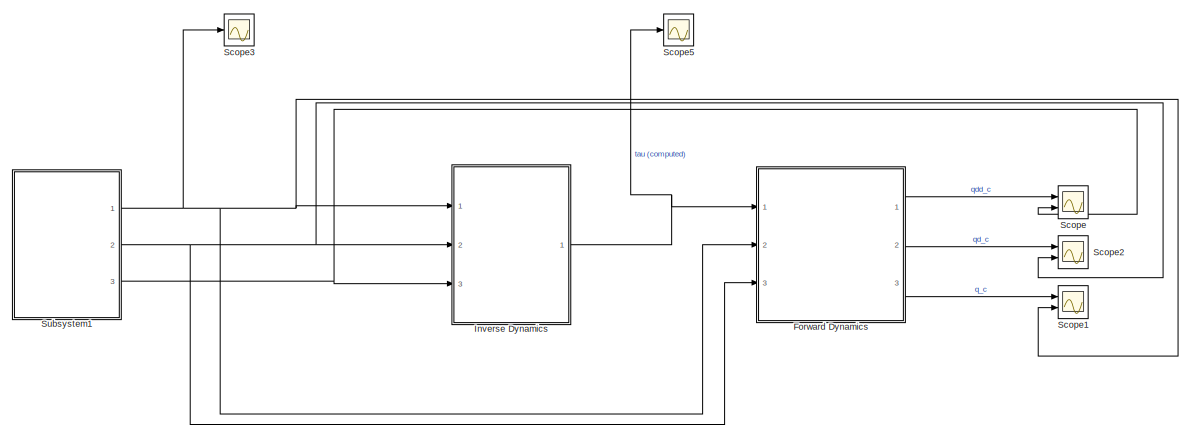
[diagram: root canvas - part 1/3, top center region]
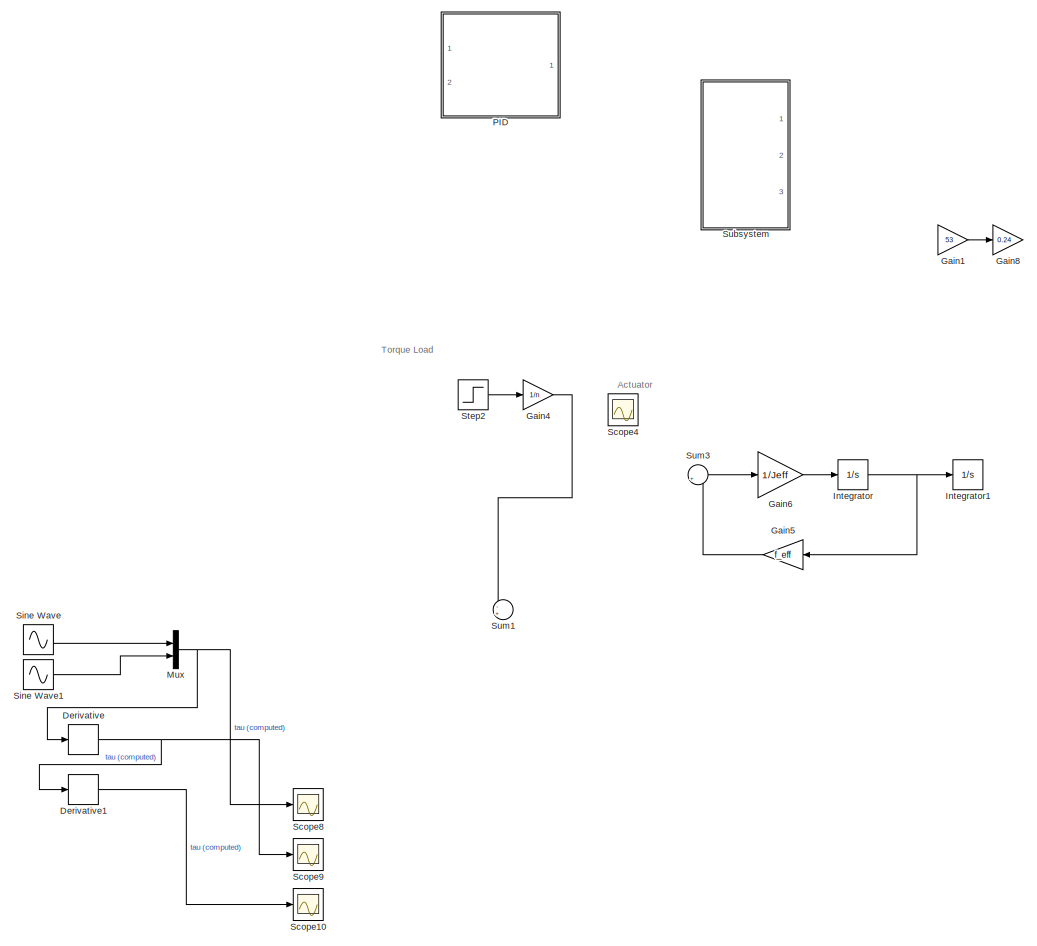
[diagram: root canvas - part 2/3, bottom left region]
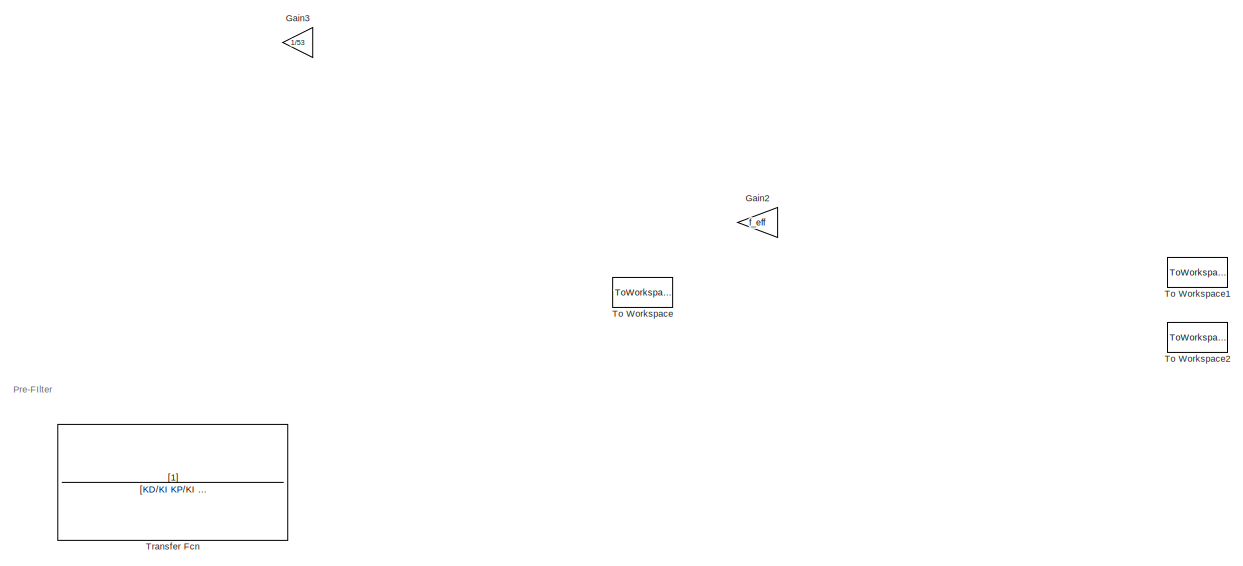
[diagram: root canvas - part 3/3, middle right region]
MODEL slx_e853d3f96205
KIND model
CONFIG AbsTol = auto
CONFIG EnableMultiTasking = off
CONFIG FixedStep = auto
CONFIG MaxStep = auto
CONFIG MinStep = auto
CONFIG RelTol = 1e-3
CONFIG SampleTimeConstraint = Unconstrained
CONFIG Solver = VariableStepAuto
CONFIG SolverName = VariableStepAuto
CONFIG StartTime = 0.0
CONFIG StopTime = 10.0
BLOCK [Derivative] Derivative
  Commented = on
BLOCK [Derivative] Derivative1
  Commented = on
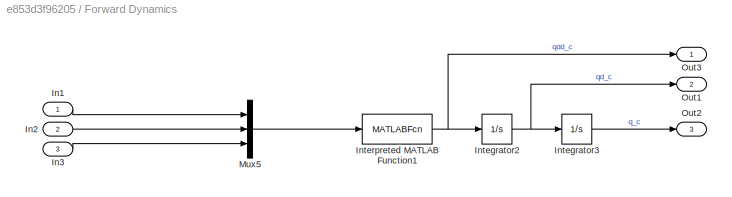
BLOCK [SubSystem] Forward Dynamics
  Ports = [3, 3]
  RequestExecContextInheritance = off
  ShowPortLabels = SignalName
BLOCK [Inport] Forward Dynamics/In1
  IconDisplay = Port number
BLOCK [Inport] Forward Dynamics/In2
  IconDisplay = Port number
  Port = 2
BLOCK [Inport] Forward Dynamics/In3
  IconDisplay = Port number
  Port = 3
BLOCK [Integrator] Forward Dynamics/Integrator2
  Ports = [1, 1]
BLOCK [Integrator] Forward Dynamics/Integrator3
  Ports = [1, 1]
BLOCK [MATLABFcn] Forward Dynamics/Interpreted MATLAB Function1
  MATLABFcn = forwardDyn
  Output1D = off
  Ports = [1, 1]
BLOCK [Mux] Forward Dynamics/Mux5
  DisplayOption = bar
  Inputs = 3
  Ports = [3, 1]
BLOCK [Outport] Forward Dynamics/Out1
  IconDisplay = Port number
  Port = 2
BLOCK [Outport] Forward Dynamics/Out2
  IconDisplay = Port number
  Port = 3
BLOCK [Outport] Forward Dynamics/Out3
  IconDisplay = Port number
BLOCK [Gain] Gain1
  Commented = on
  Gain = 53
  Multiplication = Matrix(u*K)
  OutDataTypeStr = Inherit: Inherit via internal rule
  ParamDataTypeStr = Inherit: Inherit via internal rule
  SaturateOnIntegerOverflow = off
BLOCK [Gain] Gain2
  Commented = on
  Gain = f_eff
  OutDataTypeStr = Inherit: Inherit via internal rule
  ParamDataTypeStr = Inherit: Inherit via internal rule
  SaturateOnIntegerOverflow = off
BLOCK [Gain] Gain3
  Commented = on
  Gain = 1/53
  Multiplication = Matrix(u*K)
  OutDataTypeStr = Inherit: Inherit via internal rule
  ParamDataTypeStr = Inherit: Inherit via internal rule
  SaturateOnIntegerOverflow = off
BLOCK [Gain] Gain4
  Commented = on
  Gain = 1/n
  OutDataTypeStr = Inherit: Inherit via internal rule
  ParamDataTypeStr = Inherit: Inherit via internal rule
  SaturateOnIntegerOverflow = off
BLOCK [Gain] Gain5
  Commented = on
  Gain = f_eff
  OutDataTypeStr = Inherit: Inherit via internal rule
  ParamDataTypeStr = Inherit: Inherit via internal rule
  SaturateOnIntegerOverflow = off
BLOCK [Gain] Gain6
  Commented = on
  Gain = 1/Jeff
  OutDataTypeStr = Inherit: Inherit via internal rule
  ParamDataTypeStr = Inherit: Inherit via internal rule
  SaturateOnIntegerOverflow = off
BLOCK [Gain] Gain8
  Commented = on
  Gain = 0.24
  Multiplication = Matrix(u*K)
  OutDataTypeStr = Inherit: Inherit via internal rule
  ParamDataTypeStr = Inherit: Inherit via internal rule
  SaturateOnIntegerOverflow = off
BLOCK [Integrator] Integrator
  Commented = on
  Ports = [1, 1]
BLOCK [Integrator] Integrator1
  Commented = on
  Ports = [1, 1]
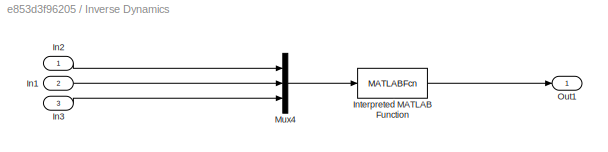
BLOCK [SubSystem] Inverse Dynamics
  Ports = [3, 1]
  RequestExecContextInheritance = off
BLOCK [Inport] Inverse Dynamics/In1
  IconDisplay = Port number
  Port = 2
BLOCK [Inport] Inverse Dynamics/In2
  IconDisplay = Port number
BLOCK [Inport] Inverse Dynamics/In3
  IconDisplay = Port number
  Port = 3
BLOCK [MATLABFcn] Inverse Dynamics/Interpreted MATLAB Function
  MATLABFcn = RNE_sim
  Output1D = off
  Ports = [1, 1]
BLOCK [Mux] Inverse Dynamics/Mux4
  DisplayOption = bar
  Inputs = 3
  Ports = [3, 1]
BLOCK [Outport] Inverse Dynamics/Out1
  IconDisplay = Port number
BLOCK [Mux] Mux
  Commented = on
  DisplayOption = bar
  Inputs = 2
  Ports = [2, 1]
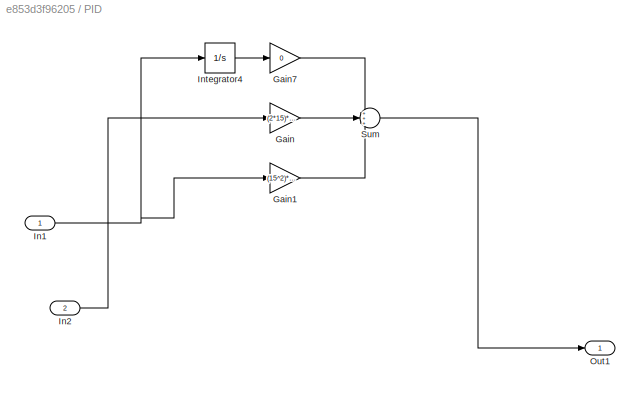
BLOCK [SubSystem] PID
  Commented = on
  Ports = [2, 1]
  RequestExecContextInheritance = off
BLOCK [Gain] PID/Gain
  Gain = (2*15)*0707
  Multiplication = Matrix(u*K)
  OutDataTypeStr = Inherit: Inherit via internal rule
  ParamDataTypeStr = Inherit: Inherit via internal rule
  SaturateOnIntegerOverflow = off
BLOCK [Gain] PID/Gain1
  Gain = (15^2)*0707
  Multiplication = Matrix(u*K)
  OutDataTypeStr = Inherit: Inherit via internal rule
  ParamDataTypeStr = Inherit: Inherit via internal rule
  SaturateOnIntegerOverflow = off
BLOCK [Gain] PID/Gain7
  Gain = 0
  Multiplication = Matrix(u*K)
  OutDataTypeStr = Inherit: Inherit via internal rule
  ParamDataTypeStr = Inherit: Inherit via internal rule
  SaturateOnIntegerOverflow = off
BLOCK [Inport] PID/In1
  IconDisplay = Port number
BLOCK [Inport] PID/In2
  IconDisplay = Port number
  Port = 2
BLOCK [Integrator] PID/Integrator4
  Ports = [1, 1]
BLOCK [Outport] PID/Out1
  IconDisplay = Port number
BLOCK [Sum] PID/Sum
  IconShape = round
  InputSameDT = off
  Inputs = +++
  OutDataTypeStr = Inherit: Inherit via internal rule
  Ports = [3, 1]
  SaturateOnIntegerOverflow = off
BLOCK [Scope] Scope
  Floating = off
  NumInputPorts = 2
  Ports = [2]
  ScopeSpecificationString = Simulink.scopes.TimeScopeBlockCfg('CurrentConfiguration', extmgr.ConfigurationSet(extmgr.Configuration('Core','General UI',true),extmgr.Configuration('Core','Source UI',true),extmgr.Configuration('Sources','WiredSimulink',true),extmgr.Configuration('Visuals','Time Domain',true,'SerializedDisplays',{struct('MinYLimReal','-5.58841','MaxYLimReal','6.02726','YLabelReal','','MinYLimMag','0.00000','MaxY...<+1457ch>
BLOCK [Scope] Scope1
  Floating = off
  NumInputPorts = 2
  Ports = [2]
  ScopeSpecificationString = Simulink.scopes.TimeScopeBlockCfg('CurrentConfiguration', extmgr.ConfigurationSet(extmgr.Configuration('Core','General UI',true),extmgr.Configuration('Core','Source UI',true),extmgr.Configuration('Sources','WiredSimulink',true,'DataLoggingVariableName','ScopeData1'),extmgr.Configuration('Visuals','Time Domain',true,'SerializedDisplays',{struct('MinYLimReal','-0.07174','MaxYLimReal','0.64569','YLab...<+1490ch>
BLOCK [Scope] Scope10
  Commented = on
  Floating = off
  NumInputPorts = 1
  Ports = [1]
  ScopeSpecificationString = Simulink.scopes.TimeScopeBlockCfg('CurrentConfiguration', extmgr.ConfigurationSet(extmgr.Configuration('Core','General UI',true),extmgr.Configuration('Core','Source UI',true),extmgr.Configuration('Sources','WiredSimulink',true,'DataLoggingVariableName','ScopeData6'),extmgr.Configuration('Visuals','Time Domain',true,'SerializedDisplays',{struct('MinYLimReal','-1.74162','MaxYLimReal','5.71211','YLab...<+1394ch>
BLOCK [Scope] Scope2
  Floating = off
  NumInputPorts = 2
  Ports = [2]
  ScopeSpecificationString = Simulink.scopes.TimeScopeBlockCfg('CurrentConfiguration', extmgr.ConfigurationSet(extmgr.Configuration('Core','General UI',true),extmgr.Configuration('Core','Source UI',true),extmgr.Configuration('Sources','WiredSimulink',true,'DataLoggingVariableName','ScopeData2'),extmgr.Configuration('Visuals','Time Domain',true,'SerializedDisplays',{struct('MinYLimReal','-0.16444','MaxYLimReal','1.47992','YLab...<+1471ch>
BLOCK [Scope] Scope3
  Floating = off
  NumInputPorts = 1
  Ports = [1]
  ScopeSpecificationString = Simulink.scopes.TimeScopeBlockCfg('CurrentConfiguration', extmgr.ConfigurationSet(extmgr.Configuration('Core','General UI',true),extmgr.Configuration('Core','Source UI',true),extmgr.Configuration('Sources','WiredSimulink',true,'DataLoggingVariableName','ScopeData1'),extmgr.Configuration('Visuals','Time Domain',true,'SerializedDisplays',{struct('MinYLimReal','-0.0625','MaxYLimReal','0.5625','YLabel...<+1388ch>
BLOCK [Scope] Scope4
  Commented = on
  Floating = off
  NumInputPorts = 1
  Ports = [1]
  ScopeSpecificationString = Simulink.scopes.TimeScopeBlockCfg('CurrentConfiguration', extmgr.ConfigurationSet(extmgr.Configuration('Core','General UI',true),extmgr.Configuration('Core','Source UI',true),extmgr.Configuration('Sources','WiredSimulink',true,'DataLoggingVariableName','ScopeData2'),extmgr.Configuration('Visuals','Time Domain',true,'SerializedDisplays',{struct('MinYLimReal','-1.00000','MaxYLimReal','1.00000','YLab...<+1443ch>
BLOCK [Scope] Scope5
  Floating = off
  NumInputPorts = 1
  Ports = [1]
  ScopeSpecificationString = Simulink.scopes.TimeScopeBlockCfg('CurrentConfiguration', extmgr.ConfigurationSet(extmgr.Configuration('Core','General UI',true),extmgr.Configuration('Core','Source UI',true),extmgr.Configuration('Sources','WiredSimulink',true,'DataLoggingVariableName','ScopeData3'),extmgr.Configuration('Visuals','Time Domain',true,'SerializedDisplays',{struct('MinYLimReal','-1.07305','MaxYLimReal','9.65742','YLab...<+1421ch>
BLOCK [Scope] Scope8
  Commented = on
  Floating = off
  NumInputPorts = 1
  Ports = [1]
  ScopeSpecificationString = Simulink.scopes.TimeScopeBlockCfg('CurrentConfiguration', extmgr.ConfigurationSet(extmgr.Configuration('Core','General UI',true),extmgr.Configuration('Core','Source UI',true),extmgr.Configuration('Sources','WiredSimulink',true,'DataLoggingVariableName','ScopeData7'),extmgr.Configuration('Visuals','Time Domain',true,'SerializedDisplays',{struct('MinYLimReal','-1.24563','MaxYLimReal','1.24904','YLab...<+1394ch>
BLOCK [Scope] Scope9
  Commented = on
  Floating = off
  NumInputPorts = 1
  Ports = [1]
  ScopeSpecificationString = Simulink.scopes.TimeScopeBlockCfg('CurrentConfiguration', extmgr.ConfigurationSet(extmgr.Configuration('Core','General UI',true),extmgr.Configuration('Core','Source UI',true),extmgr.Configuration('Sources','WiredSimulink',true,'DataLoggingVariableName','ScopeData8'),extmgr.Configuration('Visuals','Time Domain',true,'SerializedDisplays',{struct('MinYLimReal','-1.24693','MaxYLimReal','1.24765','YLab...<+1394ch>
BLOCK [Sin] Sine Wave
  Commented = on
  Ports = [0, 1]
  SampleTime = 0
BLOCK [Sin] Sine Wave1
  Commented = on
  Ports = [0, 1]
  SampleTime = 0
BLOCK [Step] Step2
  After = 6
  Commented = on
  SampleTime = 0
  Time = 5
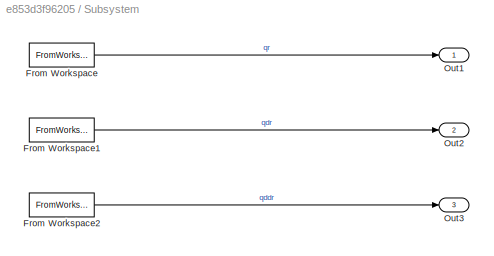
BLOCK [SubSystem] Subsystem
  Commented = on
  Ports = [0, 3]
  RequestExecContextInheritance = off
  ShowPortLabels = SignalName
BLOCK [FromWorkspace] Subsystem/From Workspace
  SampleTime = 0
  VariableName = qc
  ZeroCross = on
BLOCK [FromWorkspace] Subsystem/From Workspace1
  SampleTime = 0
  VariableName = qcdot
  ZeroCross = on
BLOCK [FromWorkspace] Subsystem/From Workspace2
  SampleTime = 0
  VariableName = qcddot
  ZeroCross = on
BLOCK [Outport] Subsystem/Out1
  IconDisplay = Port number
BLOCK [Outport] Subsystem/Out2
  IconDisplay = Port number
  Port = 2
BLOCK [Outport] Subsystem/Out3
  IconDisplay = Port number
  Port = 3
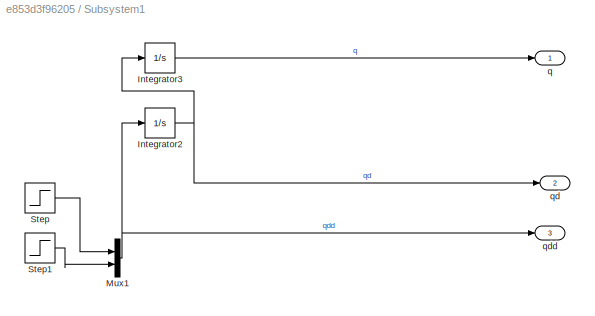
BLOCK [SubSystem] Subsystem1
  Ports = [0, 3]
  RequestExecContextInheritance = off
BLOCK [Integrator] Subsystem1/Integrator2
  Ports = [1, 1]
BLOCK [Integrator] Subsystem1/Integrator3
  Ports = [1, 1]
BLOCK [Mux] Subsystem1/Mux1
  DisplayOption = bar
  Inputs = 2
  Ports = [2, 1]
BLOCK [Step] Subsystem1/Step
  SampleTime = 0
BLOCK [Step] Subsystem1/Step1
  SampleTime = 0
BLOCK [Outport] Subsystem1/q
  IconDisplay = Port number
BLOCK [Outport] Subsystem1/qd
  IconDisplay = Port number
  Port = 2
BLOCK [Outport] Subsystem1/qdd
  IconDisplay = Port number
  Port = 3
BLOCK [Sum] Sum1
  Commented = on
  IconShape = round
  InputSameDT = off
  Inputs = -+|
  OutDataTypeStr = Inherit: Inherit via internal rule
  Ports = [2, 1]
  SaturateOnIntegerOverflow = off
BLOCK [Sum] Sum3
  Commented = on
  IconShape = round
  InputSameDT = off
  Inputs = |+-
  OutDataTypeStr = Inherit: Inherit via internal rule
  Ports = [2, 1]
  SaturateOnIntegerOverflow = off
BLOCK [ToWorkspace] To Workspace
  Commented = on
  FixptAsFi = on
  MaxDataPoints = inf
  Ports = [1]
  SampleTime = -1
  SaveFormat = Structure With Time
  VariableName = simout
BLOCK [ToWorkspace] To Workspace1
  Commented = on
  FixptAsFi = on
  MaxDataPoints = inf
  Ports = [1]
  SampleTime = -1
  SaveFormat = Structure With Time
  VariableName = q1
BLOCK [ToWorkspace] To Workspace2
  Commented = on
  FixptAsFi = on
  MaxDataPoints = inf
  Ports = [1]
  SampleTime = -1
  SaveFormat = Structure With Time
  VariableName = qr
BLOCK [TransferFcn] Transfer Fcn
  Commented = on
  Denominator = [KD/KI KP/KI 1]
ANNOTATION (root): Actuator
ANNOTATION (root): Pre-FIlter
ANNOTATION (root): Torque Load
LINE Derivative1:1 -> Scope10:1
NET Derivative:1 -> Derivative1:1, Scope9:1
LINE Forward Dynamics/In1:1 -> Forward Dynamics/Mux5:1
LINE Forward Dynamics/In2:1 -> Forward Dynamics/Mux5:2
LINE Forward Dynamics/In3:1 -> Forward Dynamics/Mux5:3
NET Forward Dynamics/Integrator2:1 -> Forward Dynamics/Integrator3:1, Forward Dynamics/Out1:1
LINE Forward Dynamics/Integrator3:1 -> Forward Dynamics/Out2:1
NET Forward Dynamics/Interpreted MATLAB Function1:1 -> Forward Dynamics/Integrator2:1, Forward Dynamics/Out3:1
LINE Forward Dynamics/Mux5:1 -> Forward Dynamics/Interpreted MATLAB Function1:1
LINE Forward Dynamics:1 -> Scope:1
LINE Forward Dynamics:2 -> Scope2:1
LINE Forward Dynamics:3 -> Scope1:1
LINE Gain1:1 -> Gain8:1
LINE Gain4:1 -> Sum1:1
LINE Gain5:1 -> Sum3:2
LINE Gain6:1 -> Integrator:1
NET Integrator:1 -> Gain5:1, Integrator1:1
LINE Inverse Dynamics/In1:1 -> Inverse Dynamics/Mux4:2
LINE Inverse Dynamics/In2:1 -> Inverse Dynamics/Mux4:1
LINE Inverse Dynamics/In3:1 -> Inverse Dynamics/Mux4:3
LINE Inverse Dynamics/Interpreted MATLAB Function:1 -> Inverse Dynamics/Out1:1
LINE Inverse Dynamics/Mux4:1 -> Inverse Dynamics/Interpreted MATLAB Function:1
NET Inverse Dynamics:1 -> Forward Dynamics:1, Scope5:1
NET Mux:1 -> Derivative:1, Scope8:1
LINE PID/Gain1:1 -> PID/Sum:3
LINE PID/Gain7:1 -> PID/Sum:1
LINE PID/Gain:1 -> PID/Sum:2
NET PID/In1:1 -> PID/Gain1:1, PID/Integrator4:1
LINE PID/In2:1 -> PID/Gain:1
LINE PID/Integrator4:1 -> PID/Gain7:1
LINE PID/Sum:1 -> PID/Out1:1
LINE Sine Wave1:1 -> Mux:2
LINE Sine Wave:1 -> Mux:1
LINE Step2:1 -> Gain4:1
LINE Subsystem/From Workspace1:1 -> Subsystem/Out2:1
LINE Subsystem/From Workspace2:1 -> Subsystem/Out3:1
LINE Subsystem/From Workspace:1 -> Subsystem/Out1:1
NET Subsystem1/Integrator2:1 -> Subsystem1/Integrator3:1, Subsystem1/qd:1
LINE Subsystem1/Integrator3:1 -> Subsystem1/q:1
NET Subsystem1/Mux1:1 -> Subsystem1/Integrator2:1, Subsystem1/qdd:1
LINE Subsystem1/Step1:1 -> Subsystem1/Mux1:2
LINE Subsystem1/Step:1 -> Subsystem1/Mux1:1
NET Subsystem1:1 -> Forward Dynamics:2, Inverse Dynamics:1, Scope1:2, Scope3:1
NET Subsystem1:2 -> Forward Dynamics:3, Inverse Dynamics:2, Scope2:2
NET Subsystem1:3 -> Inverse Dynamics:3, Scope:2
LINE Sum3:1 -> Gain6:1
note: NET lines group one-source signal fan-out (src -> all destinations, sorted); 1:1 wires keep LINE
